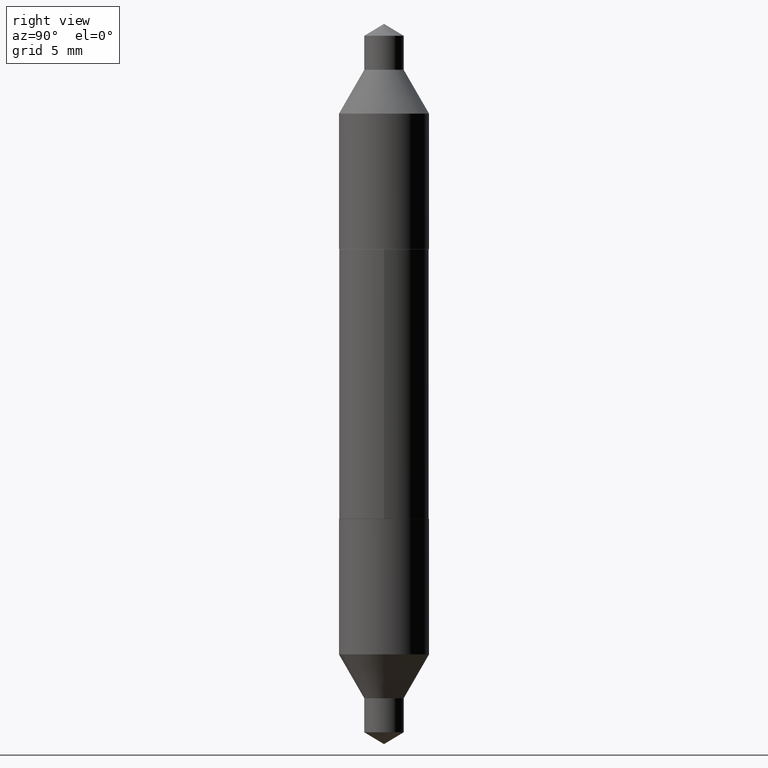
[diagram: clean part render]
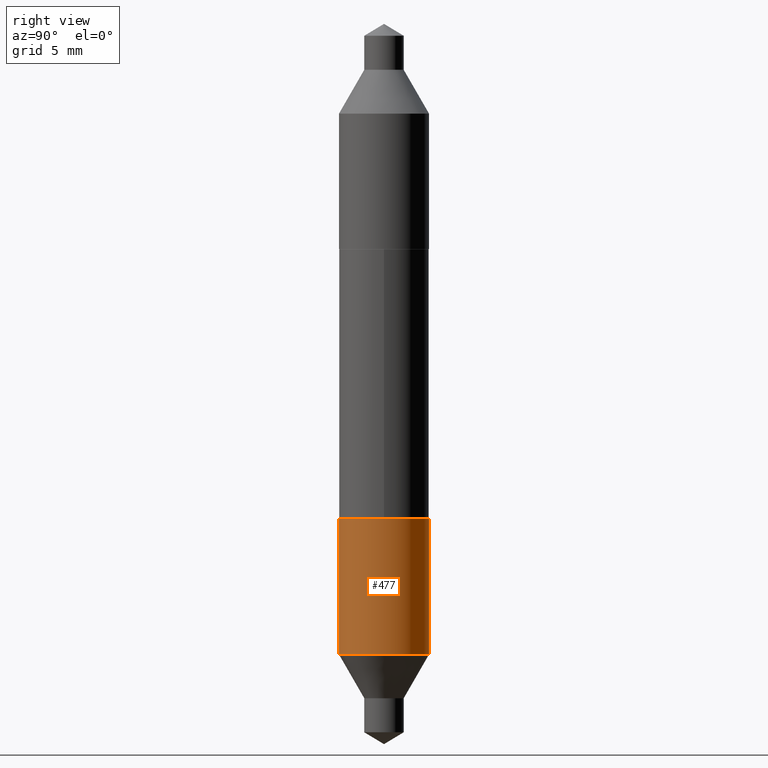
[diagram: same view with one face highlighted and labeled with its STEP entity id]
A machine part, right view. The second image highlights one B-rep face of the part: STEP entity #477.
In plain terms, the highlighted cylindrical surface (partial cylindrical patch) has radius 3.175 mm, axis along (-0, 0, 1).
Its self-contained STEP definition (entity closure, byte-faithful):
#34 = VECTOR ( 'NONE', #317, 39.37007874015748143 ) ;
#42 = AXIS2_PLACEMENT_3D ( 'NONE', #54, #597, #270 ) ;
#54 = CARTESIAN_POINT ( 'NONE',  ( 9.170508023194260837E-30, -1.309305502066179347E-15, -0.3749999999999999445 ) ) ;
#61 = VERTEX_POINT ( 'NONE', #66 ) ;
#66 = CARTESIAN_POINT ( 'NONE',  ( 8.881784197001435734E-16, 0.1249999999999986816, -0.3750000000000003886 ) ) ;
#95 = CARTESIAN_POINT ( 'NONE',  ( 9.170508023194260837E-30, -1.309305502066179347E-15, -0.3749999999999999445 ) ) ;
#97 = CIRCLE ( 'NONE', #190, 0.1250000000000000555 ) ;
#101 = ORIENTED_EDGE ( 'NONE', *, *, #484, .T. ) ;
#163 = EDGE_CURVE ( 'NONE', #672, #61, #604, .T. ) ;
#186 = ORIENTED_EDGE ( 'NONE', *, *, #610, .F. ) ;
#190 = AXIS2_PLACEMENT_3D ( 'NONE', #460, #638, #579 ) ;
#204 = DIRECTION ( 'NONE',  ( -2.454362535592602182E-29, 3.478745012132013039E-15, 1.000000000000000000 ) ) ;
#232 = ORIENTED_EDGE ( 'NONE', *, *, #163, .F. ) ;
#249 = LINE ( 'NONE', #465, #528 ) ;
#254 = CARTESIAN_POINT ( 'NONE',  ( -8.728703347107652936E-16, -0.1250000000000026923, -0.7508368282279057615 ) ) ;
#270 = DIRECTION ( 'NONE',  ( -6.982962677686265922E-15, -1.000000000000000000, 3.278217592397115862E-15 ) ) ;
#292 = CARTESIAN_POINT ( 'NONE',  ( 8.881784197001394318E-16, 0.1249999999999974742, -0.7508368282279065387 ) ) ;
#317 = DIRECTION ( 'NONE',  ( -2.454362535592602182E-29, 3.478745012132013433E-15, 1.000000000000000000 ) ) ;
#349 = CYLINDRICAL_SURFACE ( 'NONE', #590, 0.1250000000000000278 ) ;
#359 = FACE_OUTER_BOUND ( 'NONE', #383, .T. ) ;
#383 = EDGE_LOOP ( 'NONE', ( #101, #431, #232, #186 ) ) ;
#388 = VERTEX_POINT ( 'NONE', #292 ) ;
#412 = DIRECTION ( 'NONE',  ( -6.982962677686265922E-15, -1.000000000000000000, 3.278217592397115073E-15 ) ) ;
#414 = CARTESIAN_POINT ( 'NONE',  ( -8.728703347107739711E-16, -0.1250000000000013045, -0.3749999999999995559 ) ) ;
#431 = ORIENTED_EDGE ( 'NONE', *, *, #499, .T. ) ;
#438 = VERTEX_POINT ( 'NONE', #254 ) ;
#460 = CARTESIAN_POINT ( 'NONE',  ( 1.839490633017951177E-29, -2.616745993639524273E-15, -0.7508368282279060946 ) ) ;
#465 = CARTESIAN_POINT ( 'NONE',  ( 8.881784197001345015E-16, 0.1249999999999987232, -0.3750000000000003886 ) ) ;
#477 = ADVANCED_FACE ( 'NONE', ( #359 ), #349, .T. ) ;
#484 = EDGE_CURVE ( 'NONE', #438, #388, #97, .T. ) ;
#485 = LINE ( 'NONE', #594, #34 ) ;
#499 = EDGE_CURVE ( 'NONE', #388, #61, #249, .T. ) ;
#528 = VECTOR ( 'NONE', #635, 39.37007874015748143 ) ;
#579 = DIRECTION ( 'NONE',  ( -6.982962677686266711E-15, -1.000000000000000000, 3.278217592397114284E-15 ) ) ;
#590 = AXIS2_PLACEMENT_3D ( 'NONE', #95, #204, #412 ) ;
#594 = CARTESIAN_POINT ( 'NONE',  ( -8.728703347107742669E-16, -0.1250000000000013600, -0.3749999999999995559 ) ) ;
#597 = DIRECTION ( 'NONE',  ( -2.454362535592602182E-29, 3.478745012132013039E-15, 1.000000000000000000 ) ) ;
#604 = CIRCLE ( 'NONE', #42, 0.1250000000000000000 ) ;
#610 = EDGE_CURVE ( 'NONE', #438, #672, #485, .T. ) ;
#635 = DIRECTION ( 'NONE',  ( -2.454362535592602182E-29, 3.478745012132013433E-15, 1.000000000000000000 ) ) ;
#638 = DIRECTION ( 'NONE',  ( -2.454362535592602182E-29, 3.478745012132013039E-15, 1.000000000000000000 ) ) ;
#672 = VERTEX_POINT ( 'NONE', #414 ) ;